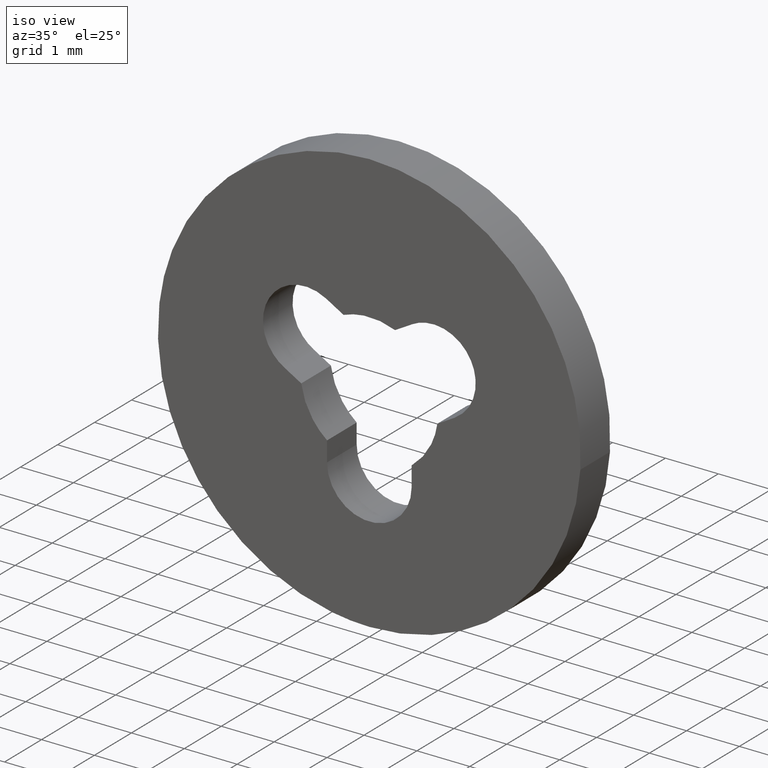
[diagram: clean part render]
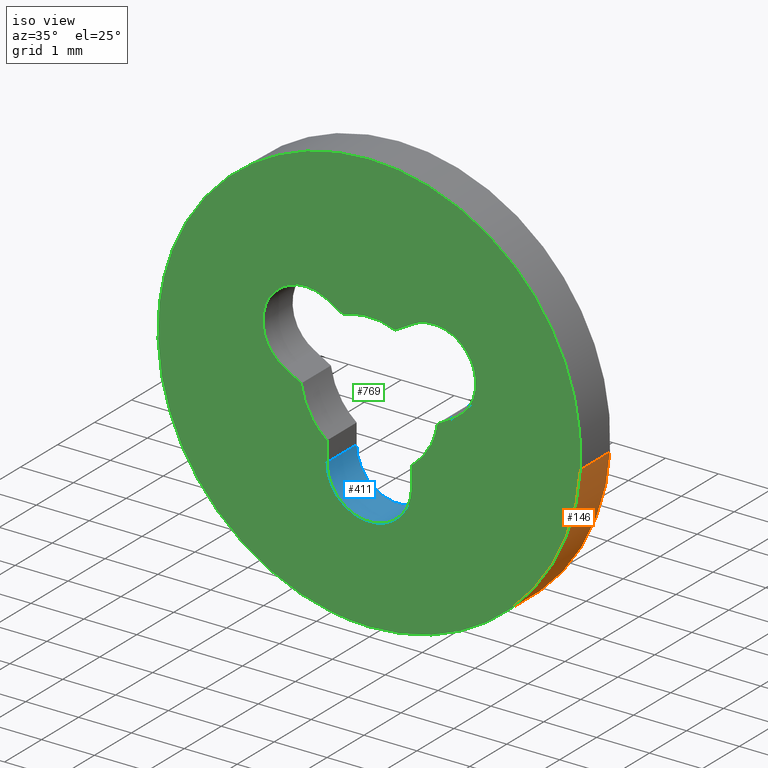
[diagram: same view with three faces highlighted in distinct colors, each labeled with its STEP entity id]
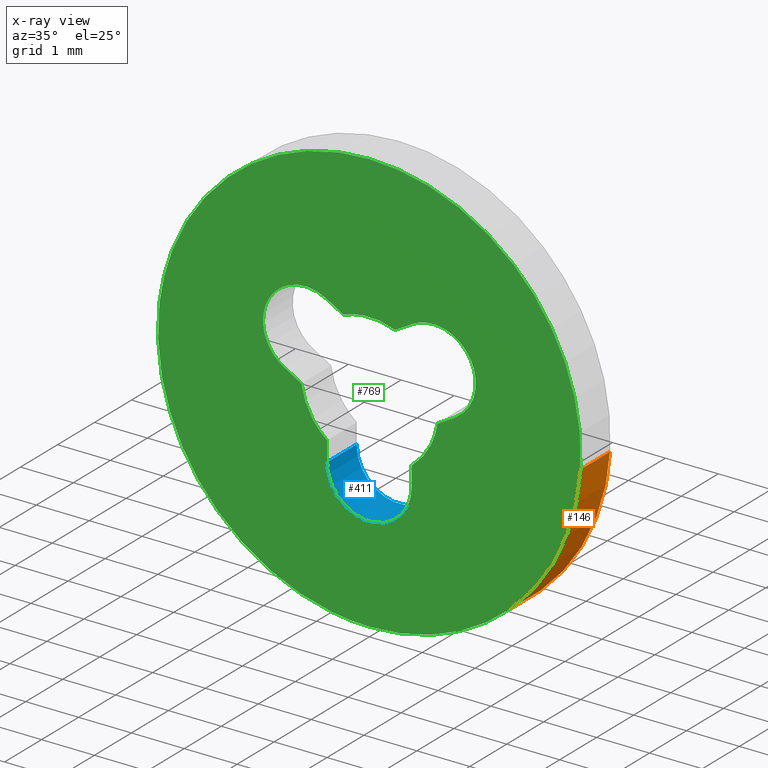
[diagram: x-ray of the same camera — body ghosted, the three highlighted faces saturated]
A machine part, iso view with three faces highlighted in distinct colors.
The next image is the same camera in x-ray (body ghosted, the three faces saturated) — at least one of them is partly hidden behind the body in this view.
Their STEP definitions:

[orange] entity #146 — the highlighted face is a freeform B-spline surface patch.
#44=CARTESIAN_POINT('',(-3.972038105454666,0.820000000000024,0.472136938627034));
#45=CARTESIAN_POINT('',(-3.985550461794422,0.820000000000024,0.358458914551911));
#46=CARTESIAN_POINT('',(-3.992539193687467,0.820000000000024,0.244194158139428));
#47=CARTESIAN_POINT('',(-4.236733351826894,0.820000000000024,-3.748345035548039));
#48=CARTESIAN_POINT('',(-0.244194158139428,0.820000000000024,-3.992539193687467));
#49=CARTESIAN_POINT('',(3.748345035548039,0.820000000000024,-4.236733351826894));
#50=CARTESIAN_POINT('',(3.992539193687467,0.820000000000024,-0.244194158139428));
#51=CARTESIAN_POINT('',(-3.972038105454666,-0.020500000000001,0.472136938627034));
#52=CARTESIAN_POINT('',(-3.985550461794422,-0.020500000000001,0.358458914551911));
#53=CARTESIAN_POINT('',(-3.992539193687467,-0.020500000000001,0.244194158139428));
#54=CARTESIAN_POINT('',(-4.236733351826894,-0.020500000000001,-3.748345035548039));
#55=CARTESIAN_POINT('',(-0.244194158139428,-0.020500000000001,-3.992539193687467));
#56=CARTESIAN_POINT('',(3.748345035548039,-0.020500000000001,-4.236733351826894));
#57=CARTESIAN_POINT('',(3.992539193687467,-0.020500000000001,-0.244194158139428));
#65=(BOUNDED_SURFACE()B_SPLINE_SURFACE(2,1,((#44,#51),(#45,#52),(#46,#53),(#47,#54),(#48,#55),(#49,#56),(#50,#57)),.UNSPECIFIED.,.F.,.F.,.U.)B_SPLINE_SURFACE_WITH_KNOTS((3,2,2,3),(2,2),(0.0,0.265096679918781,6.892513677888299,13.519930675857820),(0.0,1.0),.UNSPECIFIED.)GEOMETRIC_REPRESENTATION_ITEM()RATIONAL_B_SPLINE_SURFACE(((0.977505800795127,0.977505800795127),(0.988284271247462,0.988284271247462),(1.0,1.0),(0.707106781186548,0.707106781186548),(1.0,1.0),(0.707106781186548,0.707106781186548),(1.0,1.0)))REPRESENTATION_ITEM('')SURFACE());
#66=CARTESIAN_POINT('',(-3.972038406107942,1.940217E-014,0.472134409249084));
#67=VERTEX_POINT('',#66);
#68=CARTESIAN_POINT('',(0.0,0.0,-4.0));
#69=VERTEX_POINT('',#68);
#70=CARTESIAN_POINT('',(-3.972038406107942,1.940217E-014,0.472134409249084));
#71=CARTESIAN_POINT('',(-4.000000000000001,0.0,0.236895200548656));
#72=CARTESIAN_POINT('',(-4.0,0.0,0.0));
#73=CARTESIAN_POINT('',(-4.000000000000000,0.0,-4.000000000000000));
#74=CARTESIAN_POINT('',(0.0,0.0,-4.0));
#82=(BOUNDED_CURVE()B_SPLINE_CURVE(2,(#70,#71,#72,#73,#74),.UNSPECIFIED.,.F.,.U.)B_SPLINE_CURVE_WITH_KNOTS((3,2,3),(0.229562581136241,0.250000000000000,0.500000000000000),.UNSPECIFIED.)CURVE()GEOMETRIC_REPRESENTATION_ITEM()RATIONAL_B_SPLINE_CURVE((0.956026965128767,0.976056074419019,1.0,0.707106781186548,1.0))REPRESENTATION_ITEM(''));
#83=EDGE_CURVE('',#67,#69,#82,.T.);
#84=ORIENTED_EDGE('',*,*,#83,.F.);
#85=CARTESIAN_POINT('',(-3.972038402399532,0.800000000000023,0.472134440447886));
#86=VERTEX_POINT('',#85);
#87=CARTESIAN_POINT('',(-3.972038402399532,0.800000000000023,0.472134440447886));
#88=CARTESIAN_POINT('',(-3.972038406107942,1.940217E-014,0.472134409249084));
#89=QUASI_UNIFORM_CURVE('',1,(#87,#88),.UNSPECIFIED.,.F.,.U.);
#90=EDGE_CURVE('',#86,#67,#89,.T.);
#91=ORIENTED_EDGE('',*,*,#90,.F.);
#92=CARTESIAN_POINT('',(0.0,0.800000000000023,-4.0));
#93=VERTEX_POINT('',#92);
#94=CARTESIAN_POINT('',(-3.972038402399532,0.800000000000023,0.472134440447886));
#95=CARTESIAN_POINT('',(-4.000000000000000,0.800000000000023,0.236895216312969));
#96=CARTESIAN_POINT('',(-4.0,0.800000000000023,0.0));
#97=CARTESIAN_POINT('',(-4.000000000000000,0.800000000000023,-4.000000000000000));
#98=CARTESIAN_POINT('',(0.0,0.800000000000023,-4.0));
#106=(BOUNDED_CURVE()B_SPLINE_CURVE(2,(#94,#95,#96,#97,#98),.UNSPECIFIED.,.F.,.U.)B_SPLINE_CURVE_WITH_KNOTS((3,2,3),(0.229562579808786,0.250000000000000,0.500000000000000),.UNSPECIFIED.)CURVE()GEOMETRIC_REPRESENTATION_ITEM()RATIONAL_B_SPLINE_CURVE((0.956026962526900,0.976056072863809,1.0,0.707106781186548,1.0))REPRESENTATION_ITEM(''));
#107=EDGE_CURVE('',#86,#93,#106,.T.);
#108=ORIENTED_EDGE('',*,*,#107,.T.);
#109=CARTESIAN_POINT('',(3.992539279994037,0.800000000000023,-0.244192747031311));
#110=VERTEX_POINT('',#109);
#111=CARTESIAN_POINT('',(0.0,0.800000000000023,-4.0));
#112=CARTESIAN_POINT('',(3.762825600026705,0.800000000000023,-4.0));
#113=CARTESIAN_POINT('',(3.992539279994037,0.800000000000023,-0.244192747031311));
#121=(BOUNDED_CURVE()B_SPLINE_CURVE(2,(#111,#112,#113),.UNSPECIFIED.,.F.,.U.)B_SPLINE_CURVE_WITH_KNOTS((3,3),(0.500000000000000,0.739333023226263),.UNSPECIFIED.)CURVE()GEOMETRIC_REPRESENTATION_ITEM()RATIONAL_B_SPLINE_CURVE((1.0,0.719603921835620,0.976072172374189))REPRESENTATION_ITEM(''));
#122=EDGE_CURVE('',#93,#110,#121,.T.);
#123=ORIENTED_EDGE('',*,*,#122,.T.);
#124=CARTESIAN_POINT('',(3.992539281071392,1.277450E-014,-0.244192729416499));
#125=VERTEX_POINT('',#124);
#126=CARTESIAN_POINT('',(3.992539279994037,0.800000000000023,-0.244192747031311));
#127=CARTESIAN_POINT('',(3.992539281071392,1.277450E-014,-0.244192729416499));
#128=QUASI_UNIFORM_CURVE('',1,(#126,#127),.UNSPECIFIED.,.F.,.U.);
#129=EDGE_CURVE('',#110,#125,#128,.T.);
#130=ORIENTED_EDGE('',*,*,#129,.T.);
#131=CARTESIAN_POINT('',(0.0,0.0,-4.0));
#132=CARTESIAN_POINT('',(3.762825616659059,0.0,-4.000000000000001));
#133=CARTESIAN_POINT('',(3.992539281071392,1.277450E-014,-0.244192729416499));
#141=(BOUNDED_CURVE()B_SPLINE_CURVE(2,(#131,#132,#133),.UNSPECIFIED.,.F.,.U.)B_SPLINE_CURVE_WITH_KNOTS((3,3),(0.500000000000000,0.739333023987528),.UNSPECIFIED.)CURVE()GEOMETRIC_REPRESENTATION_ITEM()RATIONAL_B_SPLINE_CURVE((1.0,0.719603920943743,0.976072174005725))REPRESENTATION_ITEM(''));
#142=EDGE_CURVE('',#69,#125,#141,.T.);
#143=ORIENTED_EDGE('',*,*,#142,.F.);
#144=EDGE_LOOP('',(#84,#91,#108,#123,#130,#143));
#145=FACE_OUTER_BOUND('',#144,.T.);
#146=ADVANCED_FACE('',(#145),#65,.T.);

[blue] entity #411 — the highlighted face is a freeform B-spline surface patch.
#324=CARTESIAN_POINT('',(0.799999999999988,0.0,-1.399999860373652));
#325=VERTEX_POINT('',#324);
#332=CARTESIAN_POINT('',(0.799999999999988,0.800000000000023,-1.399999860373652));
#333=VERTEX_POINT('',#332);
#339=CARTESIAN_POINT('',(0.799999999999988,0.800000000000023,-1.399999860373652));
#340=CARTESIAN_POINT('',(0.799999999999988,0.0,-1.399999860373652));
#341=QUASI_UNIFORM_CURVE('',1,(#339,#340),.UNSPECIFIED.,.F.,.U.);
#342=EDGE_CURVE('',#333,#325,#341,.T.);
#347=CARTESIAN_POINT('',(0.799238577265486,0.820000000000024,-1.365104490107732));
#348=CARTESIAN_POINT('',(0.799238577265486,-0.020500000000001,-1.365104490107732));
#349=CARTESIAN_POINT('',(0.836333596761906,0.820000000000024,-2.214720119668255));
#350=CARTESIAN_POINT('',(0.836333596761906,-0.020500000000001,-2.214720119668255));
#351=CARTESIAN_POINT('',(-0.013961925149828,0.820000000000024,-2.199878156125112));
#352=CARTESIAN_POINT('',(-0.013961925149828,-0.020500000000001,-2.199878156125112));
#353=CARTESIAN_POINT('',(-0.864257447061561,0.820000000000024,-2.185036192581969));
#354=CARTESIAN_POINT('',(-0.864257447061561,-0.020500000000001,-2.185036192581969));
#355=CARTESIAN_POINT('',(-0.797533866986502,0.820000000000024,-1.337232723417723));
#356=CARTESIAN_POINT('',(-0.797533866986502,-0.020500000000001,-1.337232723417723));
#364=(BOUNDED_SURFACE()B_SPLINE_SURFACE(1,2,((#347,#349,#351,#353,#355),(#348,#350,#352,#354,#356)),.UNSPECIFIED.,.F.,.F.,.U.)B_SPLINE_SURFACE_WITH_KNOTS((2,2),(3,2,3),(0.0,1.0),(0.0,1.0,2.0),.UNSPECIFIED.)GEOMETRIC_REPRESENTATION_ITEM()RATIONAL_B_SPLINE_SURFACE(((1.0,0.685182990326359,1.0,0.685182990326359,1.0),(1.0,0.685182990326359,1.0,0.685182990326359,1.0)))REPRESENTATION_ITEM('')SURFACE());
#365=CARTESIAN_POINT('',(-0.799999999999990,0.0,-1.400000000000000));
#366=VERTEX_POINT('',#365);
#367=CARTESIAN_POINT('',(-0.799999999999990,0.0,-1.400000000000000));
#368=CARTESIAN_POINT('',(-0.800000000000000,0.0,-1.861880246379778));
#369=CARTESIAN_POINT('',(-0.399999959693345,0.0,-2.092820346298607));
#370=CARTESIAN_POINT('',(0.000000080613311,0.0,-2.323760446217437));
#371=CARTESIAN_POINT('',(0.400000080613307,0.0,-2.092820276485431));
#372=CARTESIAN_POINT('',(0.800000080613303,0.0,-1.861880106753424));
#373=CARTESIAN_POINT('',(0.799999999999988,0.0,-1.399999860373652));
#381=(BOUNDED_CURVE()B_SPLINE_CURVE(2,(#367,#368,#369,#370,#371,#372,#373),.UNSPECIFIED.,.F.,.U.)B_SPLINE_CURVE_WITH_KNOTS((3,2,2,3),(0.0,0.333333333333333,0.666666666666667,1.0),.UNSPECIFIED.)CURVE()GEOMETRIC_REPRESENTATION_ITEM()RATIONAL_B_SPLINE_CURVE((1.0,0.866025389240027,1.0,0.866025389240027,1.0,0.866025389240027,1.0))REPRESENTATION_ITEM(''));
#382=EDGE_CURVE('',#366,#325,#381,.T.);
#383=ORIENTED_EDGE('',*,*,#382,.T.);
#384=ORIENTED_EDGE('',*,*,#342,.F.);
#385=CARTESIAN_POINT('',(-0.799999999999990,0.800000000000023,-1.400000000000000));
#386=VERTEX_POINT('',#385);
#387=CARTESIAN_POINT('',(-0.799999999999990,0.800000000000023,-1.400000000000000));
#388=CARTESIAN_POINT('',(-0.800000000000000,0.800000000000023,-1.861880246379778));
#389=CARTESIAN_POINT('',(-0.399999959693345,0.800000000000023,-2.092820346298607));
#390=CARTESIAN_POINT('',(0.000000080613311,0.800000000000023,-2.323760446217437));
#391=CARTESIAN_POINT('',(0.400000080613307,0.800000000000023,-2.092820276485431));
#392=CARTESIAN_POINT('',(0.800000080613303,0.800000000000023,-1.861880106753424));
#393=CARTESIAN_POINT('',(0.799999999999988,0.800000000000023,-1.399999860373652));
#401=(BOUNDED_CURVE()B_SPLINE_CURVE(2,(#387,#388,#389,#390,#391,#392,#393),.UNSPECIFIED.,.F.,.U.)B_SPLINE_CURVE_WITH_KNOTS((3,2,2,3),(0.0,0.333333333333333,0.666666666666667,1.0),.UNSPECIFIED.)CURVE()GEOMETRIC_REPRESENTATION_ITEM()RATIONAL_B_SPLINE_CURVE((1.0,0.866025389240027,1.0,0.866025389240027,1.0,0.866025389240027,1.0))REPRESENTATION_ITEM(''));
#402=EDGE_CURVE('',#386,#333,#401,.T.);
#403=ORIENTED_EDGE('',*,*,#402,.F.);
#404=CARTESIAN_POINT('',(-0.799999999999990,0.800000000000023,-1.400000000000000));
#405=CARTESIAN_POINT('',(-0.799999999999990,0.0,-1.400000000000000));
#406=QUASI_UNIFORM_CURVE('',1,(#404,#405),.UNSPECIFIED.,.F.,.U.);
#407=EDGE_CURVE('',#386,#366,#406,.T.);
#408=ORIENTED_EDGE('',*,*,#407,.T.);
#409=EDGE_LOOP('',(#383,#384,#403,#408));
#410=FACE_OUTER_BOUND('',#409,.T.);
#411=ADVANCED_FACE('',(#410),#364,.F.);

[green] entity #769 — the highlighted face is a freeform B-spline surface patch.
#66=CARTESIAN_POINT('',(-3.972038406107942,1.940217E-014,0.472134409249084));
#67=VERTEX_POINT('',#66);
#68=CARTESIAN_POINT('',(0.0,0.0,-4.0));
#69=VERTEX_POINT('',#68);
#70=CARTESIAN_POINT('',(-3.972038406107942,1.940217E-014,0.472134409249084));
#71=CARTESIAN_POINT('',(-4.000000000000001,0.0,0.236895200548656));
#72=CARTESIAN_POINT('',(-4.0,0.0,0.0));
#73=CARTESIAN_POINT('',(-4.000000000000000,0.0,-4.000000000000000));
#74=CARTESIAN_POINT('',(0.0,0.0,-4.0));
#82=(BOUNDED_CURVE()B_SPLINE_CURVE(2,(#70,#71,#72,#73,#74),.UNSPECIFIED.,.F.,.U.)B_SPLINE_CURVE_WITH_KNOTS((3,2,3),(0.229562581136241,0.250000000000000,0.500000000000000),.UNSPECIFIED.)CURVE()GEOMETRIC_REPRESENTATION_ITEM()RATIONAL_B_SPLINE_CURVE((0.956026965128767,0.976056074419019,1.0,0.707106781186548,1.0))REPRESENTATION_ITEM(''));
#83=EDGE_CURVE('',#67,#69,#82,.T.);
#124=CARTESIAN_POINT('',(3.992539281071392,1.277450E-014,-0.244192729416499));
#125=VERTEX_POINT('',#124);
#131=CARTESIAN_POINT('',(0.0,0.0,-4.0));
#132=CARTESIAN_POINT('',(3.762825616659059,0.0,-4.000000000000001));
#133=CARTESIAN_POINT('',(3.992539281071392,1.277450E-014,-0.244192729416499));
#141=(BOUNDED_CURVE()B_SPLINE_CURVE(2,(#131,#132,#133),.UNSPECIFIED.,.F.,.U.)B_SPLINE_CURVE_WITH_KNOTS((3,3),(0.500000000000000,0.739333023987528),.UNSPECIFIED.)CURVE()GEOMETRIC_REPRESENTATION_ITEM()RATIONAL_B_SPLINE_CURVE((1.0,0.719603920943743,0.976072174005725))REPRESENTATION_ITEM(''));
#142=EDGE_CURVE('',#69,#125,#141,.T.);
#165=CARTESIAN_POINT('',(0.0,0.0,4.0));
#166=VERTEX_POINT('',#165);
#167=CARTESIAN_POINT('',(0.0,0.0,4.0));
#168=CARTESIAN_POINT('',(-3.552700382076046,0.0,4.0));
#169=CARTESIAN_POINT('',(-3.972038406107942,1.940217E-014,0.472134409249084));
#177=(BOUNDED_CURVE()B_SPLINE_CURVE(2,(#167,#168,#169),.UNSPECIFIED.,.F.,.U.)B_SPLINE_CURVE_WITH_KNOTS((3,3),(0.0,0.229562581136241),.UNSPECIFIED.)CURVE()GEOMETRIC_REPRESENTATION_ITEM()RATIONAL_B_SPLINE_CURVE((1.0,0.731050706767529,0.956026965128767))REPRESENTATION_ITEM(''));
#178=EDGE_CURVE('',#166,#67,#177,.T.);
#180=CARTESIAN_POINT('',(3.992539281071392,1.277450E-014,-0.244192729416499));
#181=CARTESIAN_POINT('',(4.000000000000001,0.0,-0.122210336829911));
#182=CARTESIAN_POINT('',(4.0,0.0,0.0));
#183=CARTESIAN_POINT('',(4.000000000000000,0.0,4.000000000000000));
#184=CARTESIAN_POINT('',(0.0,0.0,4.0));
#192=(BOUNDED_CURVE()B_SPLINE_CURVE(2,(#180,#181,#182,#183,#184),.UNSPECIFIED.,.F.,.U.)B_SPLINE_CURVE_WITH_KNOTS((3,2,3),(0.739333023987528,0.750000000000000,1.0),.UNSPECIFIED.)CURVE()GEOMETRIC_REPRESENTATION_ITEM()RATIONAL_B_SPLINE_CURVE((0.976072174005725,0.987502860242804,1.0,0.707106781186548,1.0))REPRESENTATION_ITEM(''));
#193=EDGE_CURVE('',#125,#166,#192,.T.);
#235=CARTESIAN_POINT('',(1.287408869895386,0.0,-0.180494880023472));
#236=VERTEX_POINT('',#235);
#237=CARTESIAN_POINT('',(1.612399990874480,0.0,0.007099994732456));
#238=VERTEX_POINT('',#237);
#239=CARTESIAN_POINT('',(1.287408869895386,0.0,-0.180494880023472));
#240=CARTESIAN_POINT('',(1.612399990874480,0.0,0.007099994732456));
#241=QUASI_UNIFORM_CURVE('',1,(#239,#240),.UNSPECIFIED.,.F.,.U.);
#242=EDGE_CURVE('',#236,#238,#241,.T.);
#280=CARTESIAN_POINT('',(0.800000000000010,0.0,-1.024700000000000));
#281=VERTEX_POINT('',#280);
#282=CARTESIAN_POINT('',(0.800000000000010,0.0,-1.024700000000000));
#283=CARTESIAN_POINT('',(1.214413189115295,0.0,-0.701158403634234));
#284=CARTESIAN_POINT('',(1.287408869895386,0.0,-0.180494880023472));
#292=(BOUNDED_CURVE()B_SPLINE_CURVE(2,(#282,#283,#284),.UNSPECIFIED.,.F.,.U.)CURVE()GEOMETRIC_REPRESENTATION_ITEM()QUASI_UNIFORM_CURVE()RATIONAL_B_SPLINE_CURVE((1.0,0.927054981489884,1.0))REPRESENTATION_ITEM(''));
#293=EDGE_CURVE('',#281,#236,#292,.T.);
#324=CARTESIAN_POINT('',(0.799999999999988,0.0,-1.399999860373652));
#325=VERTEX_POINT('',#324);
#326=CARTESIAN_POINT('',(0.799999999999988,0.0,-1.399999860373652));
#327=CARTESIAN_POINT('',(0.800000000000010,0.0,-1.024700000000000));
#328=QUASI_UNIFORM_CURVE('',1,(#326,#327),.UNSPECIFIED.,.F.,.U.);
#329=EDGE_CURVE('',#325,#281,#328,.T.);
#365=CARTESIAN_POINT('',(-0.799999999999990,0.0,-1.400000000000000));
#366=VERTEX_POINT('',#365);
#367=CARTESIAN_POINT('',(-0.799999999999990,0.0,-1.400000000000000));
#368=CARTESIAN_POINT('',(-0.800000000000000,0.0,-1.861880246379778));
#369=CARTESIAN_POINT('',(-0.399999959693345,0.0,-2.092820346298607));
#370=CARTESIAN_POINT('',(0.000000080613311,0.0,-2.323760446217437));
#371=CARTESIAN_POINT('',(0.400000080613307,0.0,-2.092820276485431));
#372=CARTESIAN_POINT('',(0.800000080613303,0.0,-1.861880106753424));
#373=CARTESIAN_POINT('',(0.799999999999988,0.0,-1.399999860373652));
#381=(BOUNDED_CURVE()B_SPLINE_CURVE(2,(#367,#368,#369,#370,#371,#372,#373),.UNSPECIFIED.,.F.,.U.)B_SPLINE_CURVE_WITH_KNOTS((3,2,2,3),(0.0,0.333333333333333,0.666666666666667,1.0),.UNSPECIFIED.)CURVE()GEOMETRIC_REPRESENTATION_ITEM()RATIONAL_B_SPLINE_CURVE((1.0,0.866025389240027,1.0,0.866025389240027,1.0,0.866025389240027,1.0))REPRESENTATION_ITEM(''));
#382=EDGE_CURVE('',#366,#325,#381,.T.);
#417=CARTESIAN_POINT('',(-0.800002281232923,0.0,-1.024693295587572));
#418=VERTEX_POINT('',#417);
#419=CARTESIAN_POINT('',(-0.800002281232923,0.0,-1.024693295587572));
#420=CARTESIAN_POINT('',(-0.799999999999990,0.0,-1.400000000000000));
#421=QUASI_UNIFORM_CURVE('',1,(#419,#420),.UNSPECIFIED.,.F.,.U.);
#422=EDGE_CURVE('',#418,#366,#421,.T.);
#454=CARTESIAN_POINT('',(-1.287400062812804,0.0,-0.180557686819436));
#455=VERTEX_POINT('',#454);
#456=CARTESIAN_POINT('',(-1.287400062812805,0.0,-0.180557686819436));
#457=CARTESIAN_POINT('',(-1.214383390528302,0.0,-0.701176166936854));
#458=CARTESIAN_POINT('',(-0.800002281232923,0.0,-1.024693295587572));
#466=(BOUNDED_CURVE()B_SPLINE_CURVE(2,(#456,#457,#458),.UNSPECIFIED.,.F.,.U.)CURVE()GEOMETRIC_REPRESENTATION_ITEM()QUASI_UNIFORM_CURVE()RATIONAL_B_SPLINE_CURVE((1.0,0.927064980880653,1.0))REPRESENTATION_ITEM(''));
#467=EDGE_CURVE('',#455,#418,#466,.T.);
#498=CARTESIAN_POINT('',(-1.612500000000000,0.0,0.007099999999994));
#499=VERTEX_POINT('',#498);
#500=CARTESIAN_POINT('',(-1.612500000000000,0.0,0.007099999999994));
#501=CARTESIAN_POINT('',(-1.287400062812804,0.0,-0.180557686819436));
#502=QUASI_UNIFORM_CURVE('',1,(#500,#501),.UNSPECIFIED.,.F.,.U.);
#503=EDGE_CURVE('',#499,#455,#502,.T.);
#539=CARTESIAN_POINT('',(-0.817007166694730,0.0,1.395403062118780));
#540=VERTEX_POINT('',#539);
#541=CARTESIAN_POINT('',(-0.817007166694730,0.0,1.395403062118780));
#542=CARTESIAN_POINT('',(-1.510215076494561,0.0,1.789684260389432));
#543=CARTESIAN_POINT('',(-1.906699946760339,0.0,1.097734394308717));
#544=CARTESIAN_POINT('',(-2.303184817026117,0.0,0.405784528228002));
#545=CARTESIAN_POINT('',(-1.612499999999997,0.0,0.007099999999999));
#553=(BOUNDED_CURVE()B_SPLINE_CURVE(2,(#541,#542,#543,#544,#545),.UNSPECIFIED.,.F.,.U.)B_SPLINE_CURVE_WITH_KNOTS((3,2,3),(0.0,0.500000000000000,1.0),.UNSPECIFIED.)CURVE()GEOMETRIC_REPRESENTATION_ITEM()RATIONAL_B_SPLINE_CURVE((1.0,0.708230833594024,1.0,0.708230833594024,1.0))REPRESENTATION_ITEM(''));
#554=EDGE_CURVE('',#540,#499,#553,.T.);
#587=CARTESIAN_POINT('',(-0.487532842886897,0.0,1.205118968030384));
#588=VERTEX_POINT('',#587);
#589=CARTESIAN_POINT('',(-0.487532842886897,0.0,1.205118968030384));
#590=CARTESIAN_POINT('',(-0.817007166694730,0.0,1.395403062118780));
#591=QUASI_UNIFORM_CURVE('',1,(#589,#590),.UNSPECIFIED.,.F.,.U.);
#592=EDGE_CURVE('',#588,#540,#591,.T.);
#624=CARTESIAN_POINT('',(0.487474034111251,0.0,1.205142757546716));
#625=VERTEX_POINT('',#624);
#626=CARTESIAN_POINT('',(0.487474034111252,0.0,1.205142757546716));
#627=CARTESIAN_POINT('',(-0.000034216093908,0.0,1.402337332132885));
#628=CARTESIAN_POINT('',(-0.487532842886897,0.0,1.205118968030385));
#636=(BOUNDED_CURVE()B_SPLINE_CURVE(2,(#626,#627,#628),.UNSPECIFIED.,.F.,.U.)CURVE()GEOMETRIC_REPRESENTATION_ITEM()QUASI_UNIFORM_CURVE()RATIONAL_B_SPLINE_CURVE((1.0,0.927023740882519,1.0))REPRESENTATION_ITEM(''));
#637=EDGE_CURVE('',#625,#588,#636,.T.);
#668=CARTESIAN_POINT('',(0.816907166694791,0.0,1.395403062118820));
#669=VERTEX_POINT('',#668);
#670=CARTESIAN_POINT('',(0.816907166694791,0.0,1.395403062118820));
#671=CARTESIAN_POINT('',(0.487474034111251,0.0,1.205142757546716));
#672=QUASI_UNIFORM_CURVE('',1,(#670,#671),.UNSPECIFIED.,.F.,.U.);
#673=EDGE_CURVE('',#669,#625,#672,.T.);
#709=CARTESIAN_POINT('',(1.612399990874479,0.0,0.007099994732456));
#710=CARTESIAN_POINT('',(2.303084817699688,0.0,0.405784516489318));
#711=CARTESIAN_POINT('',(1.906599949379616,0.0,1.097734389737577));
#712=CARTESIAN_POINT('',(1.510115081059544,0.0,1.789684262985836));
#713=CARTESIAN_POINT('',(0.816907166694791,0.0,1.395403062118821));
#721=(BOUNDED_CURVE()B_SPLINE_CURVE(2,(#709,#710,#711,#712,#713),.UNSPECIFIED.,.F.,.U.)B_SPLINE_CURVE_WITH_KNOTS((3,2,3),(0.0,0.500000000000000,1.0),.UNSPECIFIED.)CURVE()GEOMETRIC_REPRESENTATION_ITEM()RATIONAL_B_SPLINE_CURVE((1.0,0.708230831269535,1.0,0.708230831269535,1.0))REPRESENTATION_ITEM(''));
#722=EDGE_CURVE('',#238,#669,#721,.T.);
#744=CARTESIAN_POINT('',(-4.399527157748937,0.0,4.399599984494448));
#745=CARTESIAN_POINT('',(4.399502624477148,0.0,4.399599984494448));
#746=CARTESIAN_POINT('',(-4.399527157748937,0.0,-4.399600199071169));
#747=CARTESIAN_POINT('',(4.399502624477148,0.0,-4.399600199071169));
#748=B_SPLINE_SURFACE_WITH_KNOTS('',1,1,((#744,#746),(#745,#747)),.UNSPECIFIED.,.F.,.F.,.U.,(2,2),(2,2),(0.0,8.799029782226086),(0.0,8.799200183565617),.UNSPECIFIED.);
#749=ORIENTED_EDGE('',*,*,#178,.T.);
#750=ORIENTED_EDGE('',*,*,#83,.T.);
#751=ORIENTED_EDGE('',*,*,#142,.T.);
#752=ORIENTED_EDGE('',*,*,#193,.T.);
#753=EDGE_LOOP('',(#749,#750,#751,#752));
#754=FACE_OUTER_BOUND('',#753,.T.);
#755=ORIENTED_EDGE('',*,*,#722,.F.);
#756=ORIENTED_EDGE('',*,*,#242,.F.);
#757=ORIENTED_EDGE('',*,*,#293,.F.);
#758=ORIENTED_EDGE('',*,*,#329,.F.);
#759=ORIENTED_EDGE('',*,*,#382,.F.);
#760=ORIENTED_EDGE('',*,*,#422,.F.);
#761=ORIENTED_EDGE('',*,*,#467,.F.);
#762=ORIENTED_EDGE('',*,*,#503,.F.);
#763=ORIENTED_EDGE('',*,*,#554,.F.);
#764=ORIENTED_EDGE('',*,*,#592,.F.);
#765=ORIENTED_EDGE('',*,*,#637,.F.);
#766=ORIENTED_EDGE('',*,*,#673,.F.);
#767=EDGE_LOOP('',(#755,#756,#757,#758,#759,#760,#761,#762,#763,#764,#765,#766));
#768=FACE_BOUND('',#767,.T.);
#769=ADVANCED_FACE('',(#754,#768),#748,.F.);